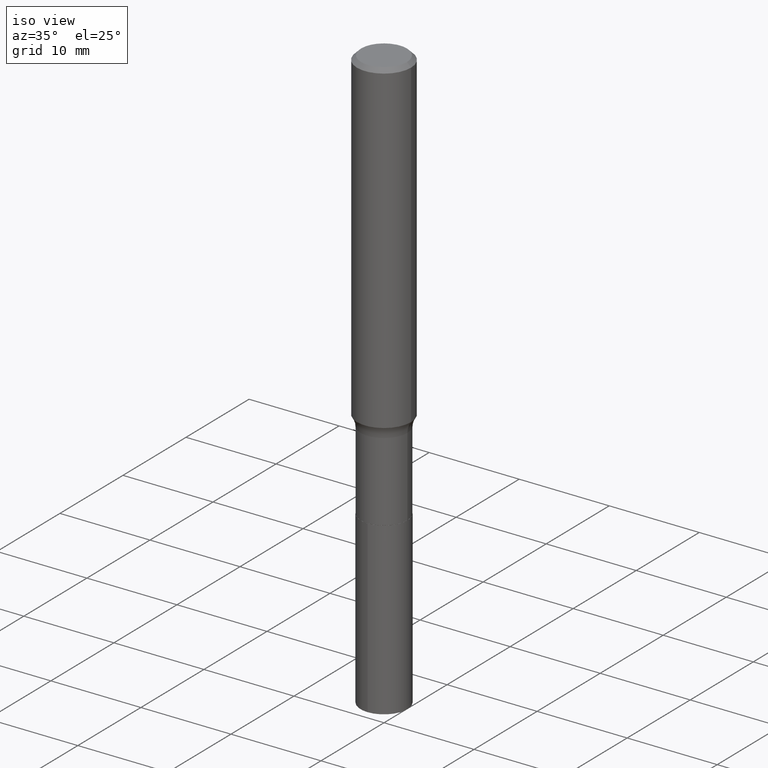
[diagram: clean part render]
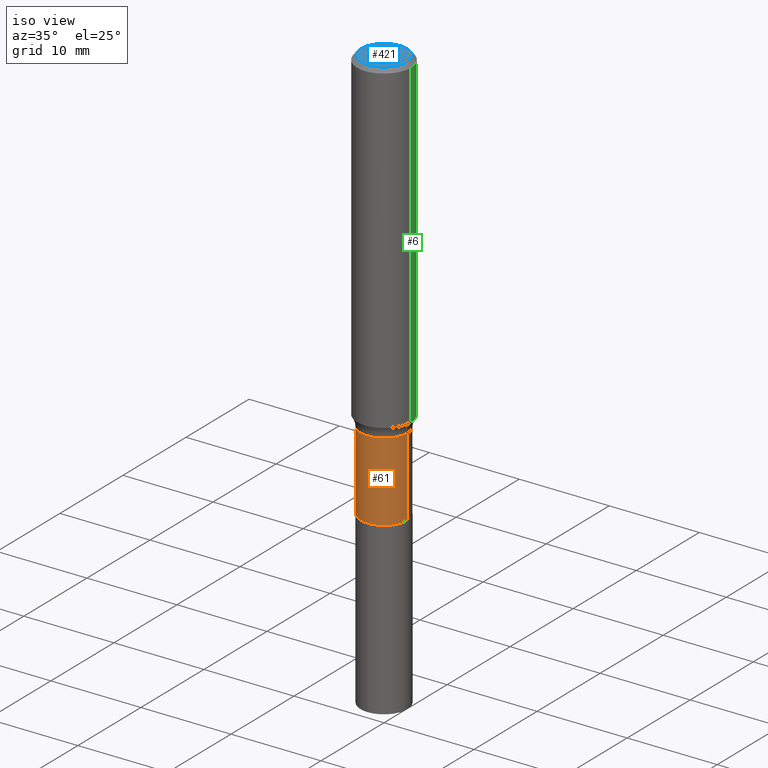
[diagram: same view with three faces highlighted in distinct colors, each labeled with its STEP entity id]
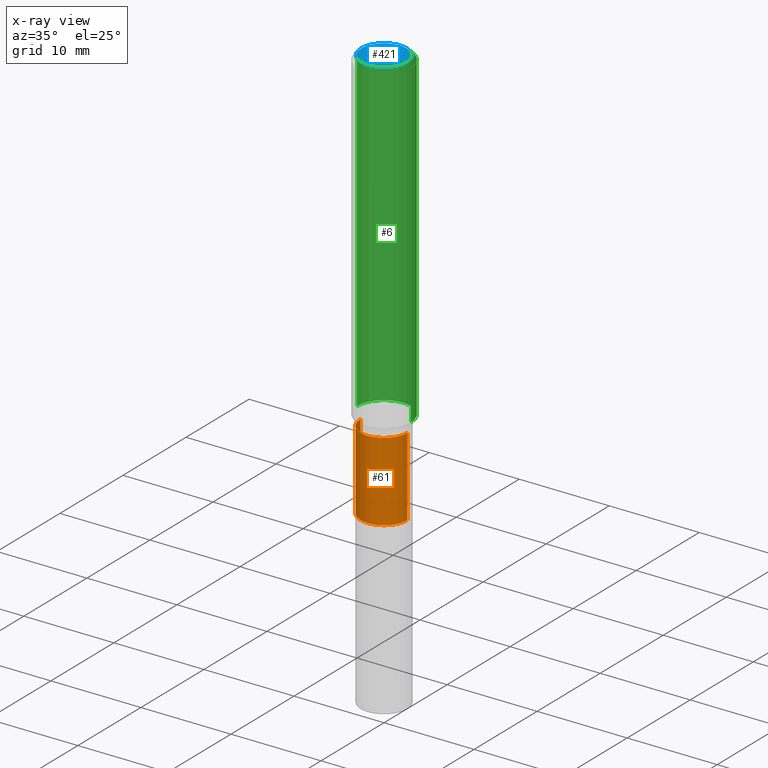
[diagram: x-ray of the same camera — body ghosted, the three highlighted faces saturated]
A machine part, iso view with three faces highlighted in distinct colors.
The next image is the same camera in x-ray (body ghosted, the three faces saturated) — at least one of them is partly hidden behind the body in this view.
Their STEP definitions:

[orange] entity #61 — the highlighted cylindrical surface (edge-blend (fillet) strip) has radius 2.5997 mm, axis along (-0, 0, 1).
#7 = DIRECTION ( 'NONE',  ( 1.000000000000000000, -6.982962677686270655E-15, 0.000000000000000000 ) ) ;
#23 = CYLINDRICAL_SURFACE ( 'NONE', #348, 0.1023499999999999827 ) ;
#28 = CIRCLE ( 'NONE', #100, 0.1023499999999999965 ) ;
#37 = ORIENTED_EDGE ( 'NONE', *, *, #118, .F. ) ;
#39 = VECTOR ( 'NONE', #405, 39.37007874015748143 ) ;
#45 = EDGE_CURVE ( 'NONE', #439, #448, #28, .T. ) ;
#49 = CARTESIAN_POINT ( 'NONE',  ( 0.1023499999999999965, -7.036033194036704874E-15, -1.810499999999999998 ) ) ;
#61 = ADVANCED_FACE ( 'NONE', ( #393 ), #23, .T. ) ;
#100 = AXIS2_PLACEMENT_3D ( 'NONE', #388, #198, #7 ) ;
#107 = EDGE_LOOP ( 'NONE', ( #427, #202, #300, #37 ) ) ;
#112 = CIRCLE ( 'NONE', #197, 0.1023499999999999688 ) ;
#118 = EDGE_CURVE ( 'NONE', #165, #423, #112, .T. ) ;
#147 = DIRECTION ( 'NONE',  ( -2.445468806185136597E-29, 3.491481338843145583E-15, 1.000000000000000000 ) ) ;
#165 = VERTEX_POINT ( 'NONE', #222 ) ;
#197 = AXIS2_PLACEMENT_3D ( 'NONE', #381, #147, #297 ) ;
#198 = DIRECTION ( 'NONE',  ( -2.445468806185136597E-29, 3.491481338843145583E-15, 1.000000000000000000 ) ) ;
#202 = ORIENTED_EDGE ( 'NONE', *, *, #45, .T. ) ;
#222 = CARTESIAN_POINT ( 'NONE',  ( -0.1023499999999999688, -4.991456794840725672E-15, -1.465299999999999825 ) ) ;
#234 = EDGE_CURVE ( 'NONE', #439, #165, #249, .T. ) ;
#248 = DIRECTION ( 'NONE',  ( -2.445468806185136597E-29, 3.491481338843145583E-15, 1.000000000000000000 ) ) ;
#249 = LINE ( 'NONE', #293, #39 ) ;
#260 = VECTOR ( 'NONE', #424, 39.37007874015748143 ) ;
#272 = EDGE_CURVE ( 'NONE', #448, #423, #309, .T. ) ;
#293 = CARTESIAN_POINT ( 'NONE',  ( -0.1023499999999999827, 7.272404900504624170E-16, -5.034530064875895945E-30 ) ) ;
#297 = DIRECTION ( 'NONE',  ( 1.000000000000000000, -6.982962677686262766E-15, 0.000000000000000000 ) ) ;
#300 = ORIENTED_EDGE ( 'NONE', *, *, #272, .T. ) ;
#305 = CARTESIAN_POINT ( 'NONE',  ( 0.1023499999999999827, -7.147062300611892976E-16, 4.990766930027139796E-30 ) ) ;
#309 = LINE ( 'NONE', #305, #260 ) ;
#316 = DIRECTION ( 'NONE',  ( 1.000000000000000000, -6.982962677686266711E-15, 4.876176775795936353E-29 ) ) ;
#348 = AXIS2_PLACEMENT_3D ( 'NONE', #443, #248, #316 ) ;
#381 = CARTESIAN_POINT ( 'NONE',  ( 3.583345441703080279E-29, -5.116067605806860307E-15, -1.465299999999999825 ) ) ;
#388 = CARTESIAN_POINT ( 'NONE',  ( 4.427521273598189436E-29, -6.321326963975514491E-15, -1.810499999999999998 ) ) ;
#393 = FACE_OUTER_BOUND ( 'NONE', #107, .T. ) ;
#405 = DIRECTION ( 'NONE',  ( -2.445468806185136877E-29, 3.491481338843145188E-15, 1.000000000000000000 ) ) ;
#420 = CARTESIAN_POINT ( 'NONE',  ( 0.1023499999999999688, -5.830773835868049112E-15, -1.465299999999999825 ) ) ;
#423 = VERTEX_POINT ( 'NONE', #420 ) ;
#424 = DIRECTION ( 'NONE',  ( -2.445468806185136877E-29, 3.491481338843145188E-15, 1.000000000000000000 ) ) ;
#427 = ORIENTED_EDGE ( 'NONE', *, *, #234, .F. ) ;
#439 = VERTEX_POINT ( 'NONE', #462 ) ;
#443 = CARTESIAN_POINT ( 'NONE',  ( 0.000000000000000000, 0.000000000000000000, 0.000000000000000000 ) ) ;
#448 = VERTEX_POINT ( 'NONE', #49 ) ;
#462 = CARTESIAN_POINT ( 'NONE',  ( -0.1023499999999999965, -4.991456794840725672E-15, -1.810499999999999998 ) ) ;

[blue] entity #421 — the highlighted planar face has unit normal (0, -0, -1).
#26 = DIRECTION ( 'NONE',  ( -2.445468806185136597E-29, 3.491481338843145583E-15, 1.000000000000000000 ) ) ;
#66 = EDGE_CURVE ( 'NONE', #256, #360, #363, .T. ) ;
#94 = EDGE_CURVE ( 'NONE', #360, #256, #140, .T. ) ;
#132 = CARTESIAN_POINT ( 'NONE',  ( 0.1003850000000000159, -7.803837484803599345E-16, -2.868857591682071522E-17 ) ) ;
#140 = CIRCLE ( 'NONE', #425, 0.1003850000000000159 ) ;
#144 = DIRECTION ( 'NONE',  ( 2.438088387897960049E-29, -3.491481338843145188E-15, -1.000000000000000000 ) ) ;
#183 = ORIENTED_EDGE ( 'NONE', *, *, #66, .T. ) ;
#226 = CARTESIAN_POINT ( 'NONE',  ( 3.507850874923593654E-46, -5.008281372579124849E-32, -1.434428795841294606E-17 ) ) ;
#256 = VERTEX_POINT ( 'NONE', #392 ) ;
#264 = DIRECTION ( 'NONE',  ( -2.445468806185136597E-29, 3.491481338843145583E-15, 1.000000000000000000 ) ) ;
#287 = CARTESIAN_POINT ( 'NONE',  ( 7.015701749847187307E-46, -1.001656274515824970E-31, -2.868857591682589212E-17 ) ) ;
#302 = PLANE ( 'NONE',  #327 ) ;
#327 = AXIS2_PLACEMENT_3D ( 'NONE', #226, #144, #454 ) ;
#360 = VERTEX_POINT ( 'NONE', #132 ) ;
#363 = CIRCLE ( 'NONE', #471, 0.1003850000000000159 ) ;
#392 = CARTESIAN_POINT ( 'NONE',  ( -0.1003850000000000159, 7.319105043583386689E-16, -2.868857591683090262E-17 ) ) ;
#401 = CARTESIAN_POINT ( 'NONE',  ( 7.015701749847187307E-46, -1.001656274515824970E-31, -2.868857591682589212E-17 ) ) ;
#412 = ORIENTED_EDGE ( 'NONE', *, *, #94, .T. ) ;
#421 = ADVANCED_FACE ( 'NONE', ( #488 ), #302, .F. ) ;
#425 = AXIS2_PLACEMENT_3D ( 'NONE', #287, #264, #459 ) ;
#454 = DIRECTION ( 'NONE',  ( -1.000000000000000000, 6.982962677686265922E-15, -4.876176775795935793E-29 ) ) ;
#459 = DIRECTION ( 'NONE',  ( 1.000000000000000000, -6.982962677686266711E-15, 4.875668750515085695E-29 ) ) ;
#467 = DIRECTION ( 'NONE',  ( 1.000000000000000000, -6.982962677686266711E-15, 4.875668750515085695E-29 ) ) ;
#471 = AXIS2_PLACEMENT_3D ( 'NONE', #401, #26, #467 ) ;
#472 = EDGE_LOOP ( 'NONE', ( #183, #412 ) ) ;
#488 = FACE_OUTER_BOUND ( 'NONE', #472, .T. ) ;

[green] entity #6 — the highlighted cylindrical surface (edge-blend (fillet) strip) has radius 2.9997 mm, axis along (-0, 0, 1).
#3 = DIRECTION ( 'NONE',  ( -2.445468806185136877E-29, 3.491481338843145188E-15, 1.000000000000000000 ) ) ;
#5 = ORIENTED_EDGE ( 'NONE', *, *, #312, .T. ) ;
#6 = ADVANCED_FACE ( 'NONE', ( #315 ), #83, .T. ) ;
#15 = EDGE_LOOP ( 'NONE', ( #5, #18, #57, #266 ) ) ;
#18 = ORIENTED_EDGE ( 'NONE', *, *, #367, .T. ) ;
#56 = VECTOR ( 'NONE', #429, 39.37007874015748143 ) ;
#57 = ORIENTED_EDGE ( 'NONE', *, *, #428, .F. ) ;
#83 = CYLINDRICAL_SURFACE ( 'NONE', #470, 0.1181000000000000799 ) ;
#85 = CARTESIAN_POINT ( 'NONE',  ( 0.000000000000000000, 0.000000000000000000, 0.000000000000000000 ) ) ;
#98 = LINE ( 'NONE', #195, #278 ) ;
#111 = CARTESIAN_POINT ( 'NONE',  ( 0.1180999999999999966, -8.865394841523547570E-16, -0.01771500000000011260 ) ) ;
#114 = DIRECTION ( 'NONE',  ( 1.000000000000000000, -6.982962677686266711E-15, 0.000000000000000000 ) ) ;
#119 = VERTEX_POINT ( 'NONE', #228 ) ;
#122 = DIRECTION ( 'NONE',  ( 1.000000000000000000, -6.982962677686270655E-15, 0.000000000000000000 ) ) ;
#137 = VERTEX_POINT ( 'NONE', #111 ) ;
#169 = AXIS2_PLACEMENT_3D ( 'NONE', #386, #200, #122 ) ;
#188 = VERTEX_POINT ( 'NONE', #218 ) ;
#189 = DIRECTION ( 'NONE',  ( -2.445468806185136597E-29, 3.491481338843145583E-15, 1.000000000000000000 ) ) ;
#195 = CARTESIAN_POINT ( 'NONE',  ( -0.1181000000000000799, 8.391509709326788873E-16, -5.809262341591047988E-30 ) ) ;
#200 = DIRECTION ( 'NONE',  ( -2.445468806185136597E-29, 3.491481338843145583E-15, 1.000000000000000000 ) ) ;
#218 = CARTESIAN_POINT ( 'NONE',  ( -0.1180999999999999966, -1.667759977206778144E-15, -0.01771500000000011260 ) ) ;
#228 = CARTESIAN_POINT ( 'NONE',  ( 0.1181000000000001909, -5.776658196596058691E-15, -1.418300664898319630 ) ) ;
#233 = DIRECTION ( 'NONE',  ( -2.445468806185136597E-29, 3.491481338843145583E-15, 1.000000000000000000 ) ) ;
#266 = ORIENTED_EDGE ( 'NONE', *, *, #353, .F. ) ;
#278 = VECTOR ( 'NONE', #3, 39.37007874015748143 ) ;
#294 = CARTESIAN_POINT ( 'NONE',  ( 4.332147990156996744E-31, -6.185159191760671627E-17, -0.01771500000000011260 ) ) ;
#312 = EDGE_CURVE ( 'NONE', #119, #407, #426, .T. ) ;
#314 = DIRECTION ( 'NONE',  ( 1.000000000000000000, -6.982962677686266711E-15, 4.876176775795936353E-29 ) ) ;
#315 = FACE_OUTER_BOUND ( 'NONE', #15, .T. ) ;
#320 = CIRCLE ( 'NONE', #399, 0.1180999999999999966 ) ;
#322 = LINE ( 'NONE', #475, #56 ) ;
#353 = EDGE_CURVE ( 'NONE', #119, #137, #322, .T. ) ;
#367 = EDGE_CURVE ( 'NONE', #407, #188, #98, .T. ) ;
#386 = CARTESIAN_POINT ( 'NONE',  ( 3.468410033800479297E-29, -4.951970304361308851E-15, -1.418300664898319630 ) ) ;
#399 = AXIS2_PLACEMENT_3D ( 'NONE', #294, #189, #114 ) ;
#407 = VERTEX_POINT ( 'NONE', #492 ) ;
#426 = CIRCLE ( 'NONE', #169, 0.1181000000000001632 ) ;
#428 = EDGE_CURVE ( 'NONE', #137, #188, #320, .T. ) ;
#429 = DIRECTION ( 'NONE',  ( -2.445468806185136877E-29, 3.491481338843145188E-15, 1.000000000000000000 ) ) ;
#470 = AXIS2_PLACEMENT_3D ( 'NONE', #85, #233, #314 ) ;
#475 = CARTESIAN_POINT ( 'NONE',  ( 0.1181000000000000799, -8.246878922347486570E-16, 5.758764772215004644E-30 ) ) ;
#492 = CARTESIAN_POINT ( 'NONE',  ( -0.1181000000000001909, -4.112819333428629076E-15, -1.418300664898319630 ) ) ;